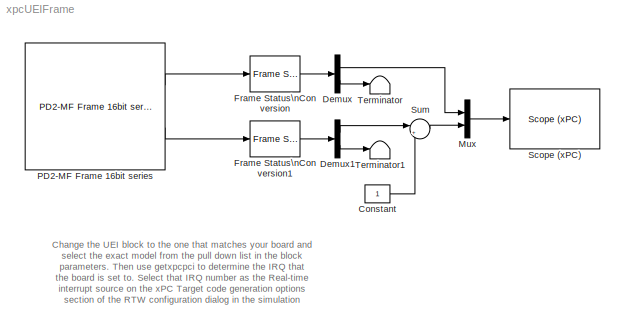
MODEL xpcUEIFrame
KIND model
BLOCK [Constant] Constant
BLOCK [Demux] Demux
  Outputs = [1 -1]
  Ports = [1, 2]
BLOCK [Demux] Demux1
  Outputs = [1 -1]
  Ports = [1, 2]
BLOCK [Reference] Frame Status\nConversion  REF=dspsigattribs/Frame Status\nConversion
  Ports = [1, 1]
  ShowPortLabels = off
  SourceBlock = dspsigattribs/Frame Status\nConversion
  SourceType = Frame Status Conversion
  growRefPort = off
  outframe = Sample-based
BLOCK [Reference] Frame Status\nConversion1  REF=dspsigattribs/Frame Status\nConversion
  Ports = [1, 1]
  ShowPortLabels = off
  SourceBlock = dspsigattribs/Frame Status\nConversion
  SourceType = Frame Status Conversion
  growRefPort = off
  outframe = Sample-based
BLOCK [Mux] Mux
  DisplayOption = bar
  Inputs = 2
  Ports = [2, 1]
BLOCK [Reference] PD2-MF Frame 16bit series   REF=xpclib/A//D\nFrame/UEI/PD2-MF Frame 16bit series 
  Ports = [0, 2]
  SourceBlock = xpclib/A//D\nFrame/UEI/PD2-MF Frame 16bit series
  SourceType = ueipd2mf16_ad_16
  boardtypein = PD2-MF-16-333/16H
  burst = 32
  channel = [1 2]
  clsource = Internal
  framesize = 32
  frametime = 0.001
  freq = -1
  gain = [1]
  mux = [0]
  outfmt = Frame (Signal Processing blockset needed)
  pcislot = -1
  range = +- 10 Volts
  sampletime = off
  scantime = -1
  sediff = Single Ended
  slave = off
BLOCK [Reference] Scope (xPC)   REF=xpclib/Misc./Scope (xPC) 
  Ports = [1]
  ShowPortLabels = on
  SourceBlock = xpclib/Misc./Scope (xPC)
  SourceType = xpcscopeblock
  autorestart = off
  autostart = on
  filename = data.dat
  formatstr = '%15.6f'
  grid = on
  interleave = 1
  mode = Lazy
  noprepostsamples = 0
  nosamples = 100
  scopeno = 1
  scopetype = Target
  triggerlevel = 0.0
  triggermode = FreeRun
  triggersample = 0
  triggerscope = 1
  triggersignal = 1
  triggerslope = Either
  viewmode = Graphical redraw
  writesize = 512
  ylimits = [0,0]
BLOCK [Sum] Sum
  IconShape = round
  InputSameDT = off
  Inputs = |++
  OutDataTypeMode = Inherit via internal rule
  Ports = [2, 1]
BLOCK [Terminator] Terminator
BLOCK [Terminator] Terminator1
ANNOTATION (root): Change the UEI block to the one that matches your board and\nselect the exact model from the pull down list in the block\nparameters. Then use getxpcpci to determine the IRQ that\nthe board is set to. Select that IRQ number as the Real-time\ninterrupt source on the xPC Target code generation options\nsection of the RTW configuration dialog in the simulation\nparameters.
LINE Constant:1 -> Sum:2
LINE Demux1:1 -> Sum:1
LINE Demux1:2 -> Terminator1:1
LINE Demux:1 -> Mux:1
LINE Demux:2 -> Terminator:1
LINE Frame Status\nConversion1:1 -> Demux1:1
LINE Frame Status\nConversion:1 -> Demux:1
LINE Mux:1 -> Scope (xPC) :1
LINE PD2-MF Frame 16bit series :1 -> Frame Status\nConversion:1
LINE PD2-MF Frame 16bit series :2 -> Frame Status\nConversion1:1
LINE Sum:1 -> Mux:2
